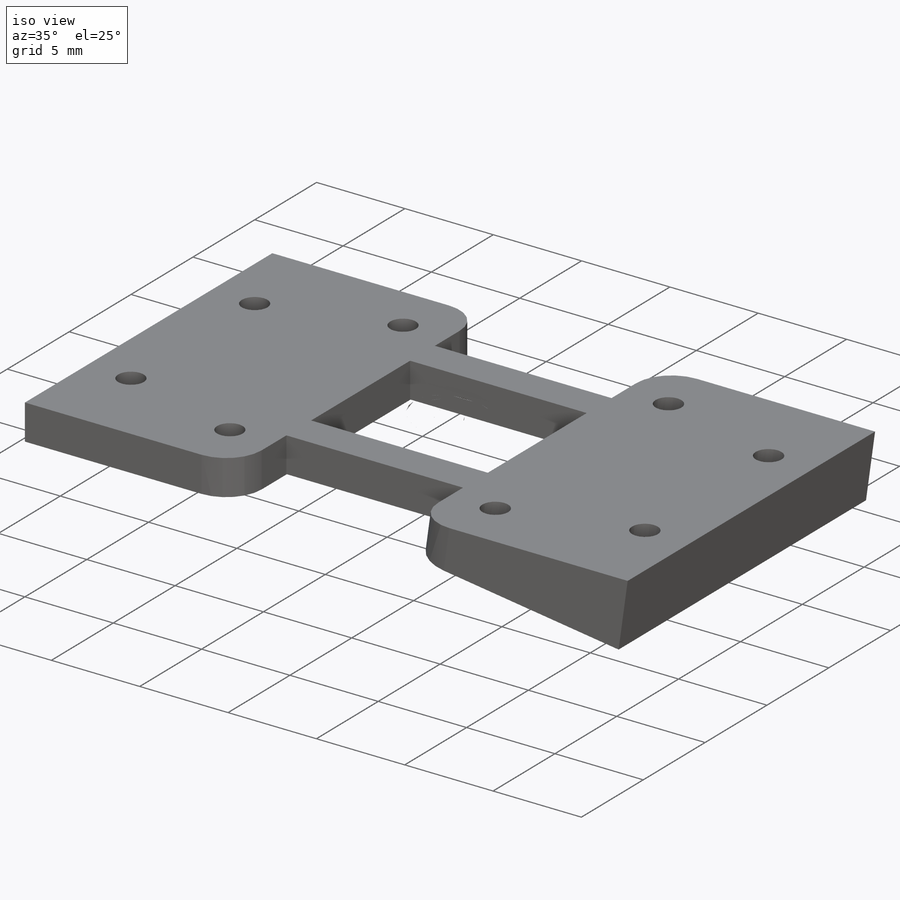
[diagram: iso view]
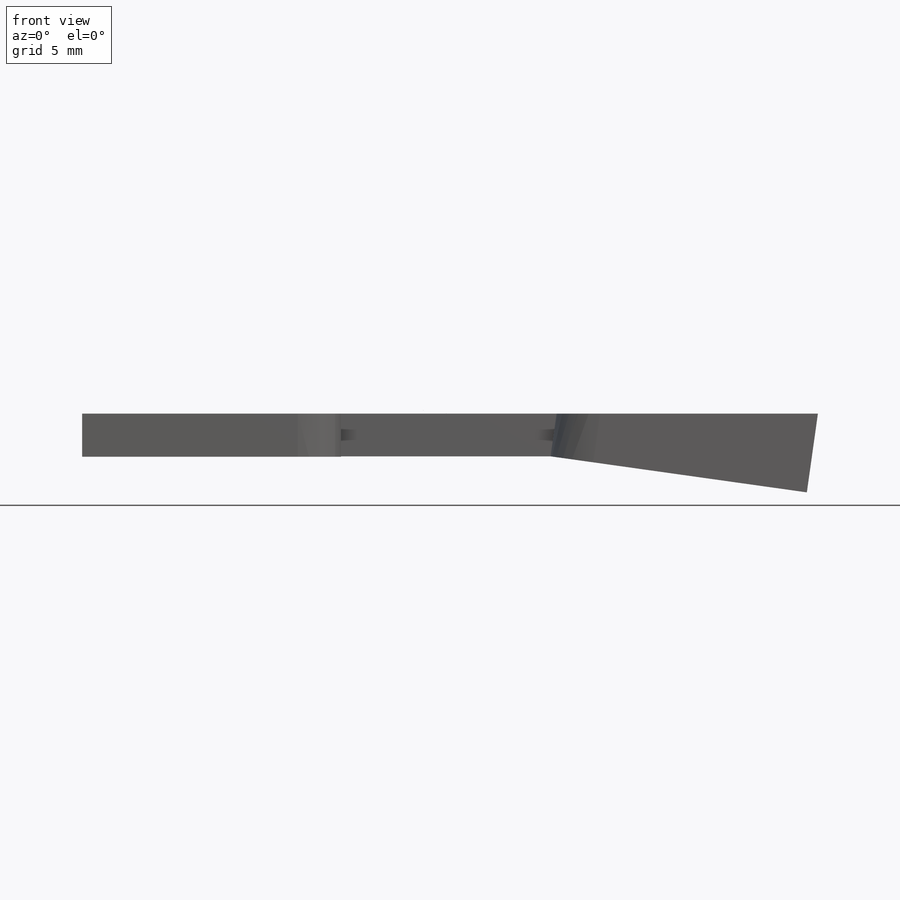
[diagram: front view]
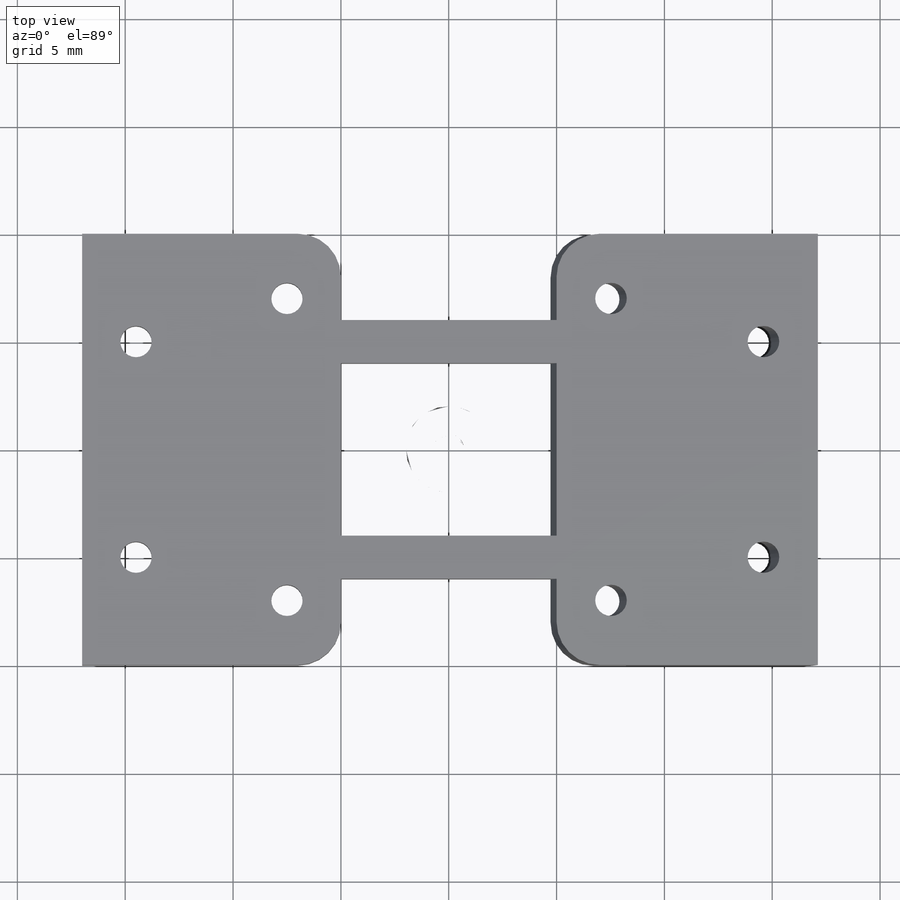
[diagram: top view]
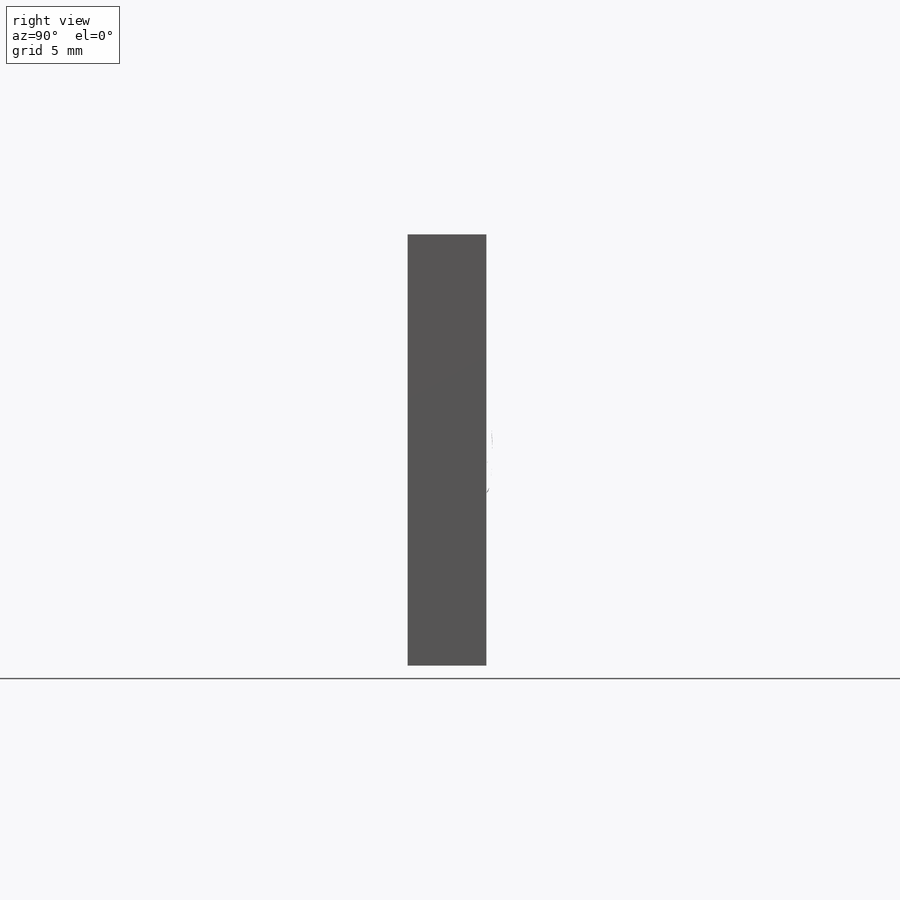
[diagram: right view]
SOLIDWORKS PART (.sldprt)
format: sldprt  version: not decoded by parser v0  size: 299,008 bytes
history: native  units: mm
features: sketch x4, extrude x2, cut_extrude x2, fillet x2, material x1 + 1 further entry (+17 scaffold rows collapsed; 3 parser-record rows omitted)
feature tree (32):
  scaffold x17  (default folders/planes/origin — collapsed)
  material  "ABS"
  "RobotHandParameters"
  parser-record x3  (decoder bookkeeping rows leaked as tree rows — omitted from the tree; the rows remain in map.json)
  sketch  "Sketch1"  dims[c1.D1=~20.166765mm c2.D1=7.5deg c2.D2=2.0mm c2.D3=20.0mm c3.D1=~19.736695mm c4.D1=8.0deg c4.D2=20.0mm c4.D3=~2.017258mm c5.D3=90.0deg c6.D3=2.0mm c6.D2=15.0mm c7.D3=2.0mm c7.D4=~3.924033mm c8.D4=90.0deg c9.D4=~14.744444mm c10.D4=7.5deg c11.D4=15.0mm c12.D4=0.0deg c12.D5=10.0mm c12.D2=12.0mm]
  extrude  "Main Body"  Depth=20mm
  sketch  "Sketch3"  dims[D1=2.0mm D2=4.0mm]
  extrude  "Bridges"  Depth=12mm
  sketch  "Sketch2"  dims[c1.D3=1.5mm c1.D1=1.45mm c2.D1=2.75mm c2.D2=2.5mm c2.D4=2.75mm c2.D5=7.0mm c2.D6=6.0mm c2.D7=6.0mm c3.D2=3.0mm c3.D3=2.5mm c3.D4=5.0mm c3.D5=9.5mm c3.D6=2.5mm c3.D7=8.0mm c3.D8=2.5mm]
  cut_extrude  "Holes For Stitching 1"  [1 undecoded]
  sketch  "Sketch4"  dims[c1.D1=1.45mm c1.D2=2.5mm c1.D3=3.0mm c1.D4=9.5mm c2.D2=2.5mm c2.D5=5.0mm]
  cut_extrude  "Holes For Stitching 2"  [1 undecoded]
  fillet  "Joint Base Contouring 1"  Radius=2mm
  fillet  "Joint Base Contouring 2"  Radius=2mm
decode coverage: 8 of 10 modeling features carry decoded parameters; 1 rows unclassified (native names shown)
note: ~ marks probable driven/reference dimensions
note: 2 parameter values undecoded
note: suppression state not decoded; provenance and decode notes live in map.json
